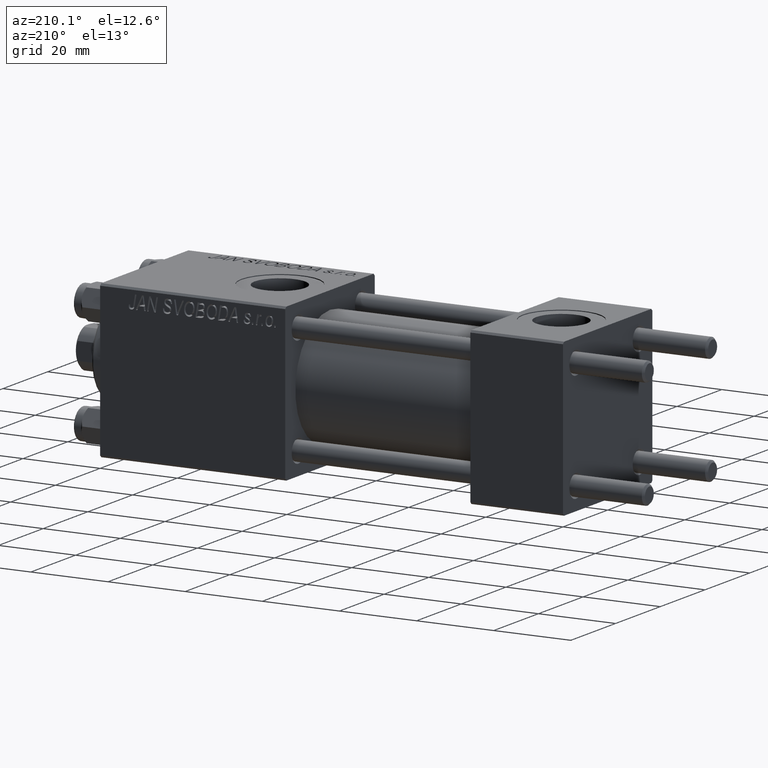
[diagram: clean part render]
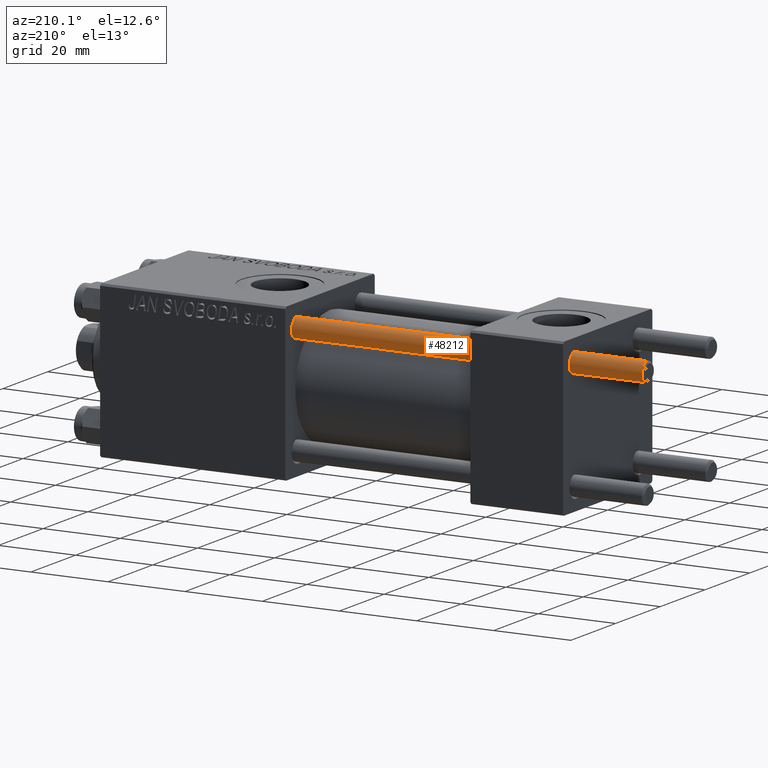
[diagram: same view with one face highlighted and labeled with its STEP entity id]
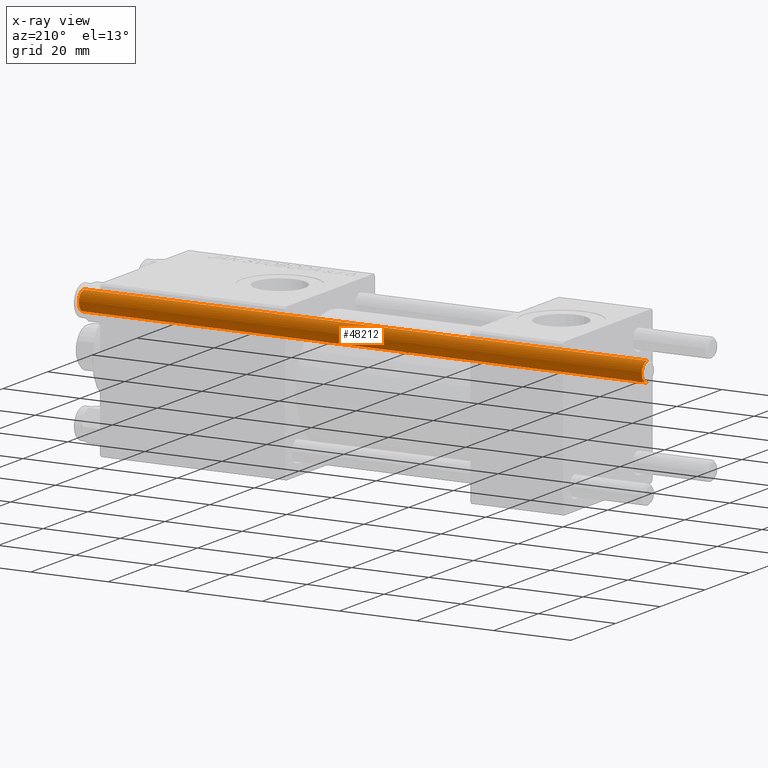
[diagram: x-ray of the same camera — body ghosted, the highlighted face saturated]
A machine part, auxiliary view. The second image highlights one B-rep face of the part: STEP entity #48212.
The next image is the same camera in x-ray: the body ghosted, the highlighted face saturated — about 0% of this face is hidden behind the body in this view.
In plain terms, the highlighted cylindrical surface (edge-blend (fillet) strip) has radius 2.5 mm, axis along (-1, -0, -0).
Its self-contained STEP definition (entity closure, byte-faithful):
#9 = VERTEX_POINT ( 'NONE', #35545 ) ;
#1189 = CARTESIAN_POINT ( 'NONE',  ( 2.500000000000000000, 3.061616997868383141E-16, 0.5000000000000004441 ) ) ;
#5062 = VERTEX_POINT ( 'NONE', #1189 ) ;
#5803 = FACE_OUTER_BOUND ( 'NONE', #13515, .T. ) ;
#6046 = CYLINDRICAL_SURFACE ( 'NONE', #13373, 2.500000000000000000 ) ;
#7053 = CARTESIAN_POINT ( 'NONE',  ( -2.500000000000000000, 0.000000000000000000, 147.0000000000000000 ) ) ;
#8470 = DIRECTION ( 'NONE',  ( -0.000000000000000000, -0.000000000000000000, -1.000000000000000000 ) ) ;
#10482 = VECTOR ( 'NONE', #24926, 1000.000000000000000 ) ;
#12006 = DIRECTION ( 'NONE',  ( -1.000000000000000000, 0.000000000000000000, 0.000000000000000000 ) ) ;
#12880 = CIRCLE ( 'NONE', #26645, 2.500000000000000000 ) ;
#13373 = AXIS2_PLACEMENT_3D ( 'NONE', #21433, #8470, #12006 ) ;
#13515 = EDGE_LOOP ( 'NONE', ( #44448, #49059, #49265, #27743 ) ) ;
#14994 = EDGE_CURVE ( 'NONE', #5062, #18139, #35416, .T. ) ;
#15629 = CARTESIAN_POINT ( 'NONE',  ( -2.500000000000000000, 0.000000000000000000, 146.5000000000000284 ) ) ;
#15687 = EDGE_CURVE ( 'NONE', #9, #5062, #36784, .T. ) ;
#18139 = VERTEX_POINT ( 'NONE', #29608 ) ;
#18306 = DIRECTION ( 'NONE',  ( 0.000000000000000000, 0.000000000000000000, -1.000000000000000000 ) ) ;
#19311 = AXIS2_PLACEMENT_3D ( 'NONE', #25599, #45058, #30152 ) ;
#21433 = CARTESIAN_POINT ( 'NONE',  ( 0.000000000000000000, 0.000000000000000000, 147.0000000000000000 ) ) ;
#22110 = CARTESIAN_POINT ( 'NONE',  ( 0.000000000000000000, 0.000000000000000000, 146.5000000000000284 ) ) ;
#24926 = DIRECTION ( 'NONE',  ( -0.000000000000000000, -0.000000000000000000, -1.000000000000000000 ) ) ;
#25033 = EDGE_CURVE ( 'NONE', #28433, #9, #12880, .T. ) ;
#25599 = CARTESIAN_POINT ( 'NONE',  ( 0.000000000000000000, 0.000000000000000000, 0.5000000000000004441 ) ) ;
#26645 = AXIS2_PLACEMENT_3D ( 'NONE', #22110, #18306, #49902 ) ;
#27743 = ORIENTED_EDGE ( 'NONE', *, *, #45528, .F. ) ;
#28433 = VERTEX_POINT ( 'NONE', #15629 ) ;
#29608 = CARTESIAN_POINT ( 'NONE',  ( -2.500000000000000000, 0.000000000000000000, 0.5000000000000004441 ) ) ;
#29774 = DIRECTION ( 'NONE',  ( -0.000000000000000000, -0.000000000000000000, -1.000000000000000000 ) ) ;
#30152 = DIRECTION ( 'NONE',  ( 1.000000000000000000, 0.000000000000000000, 0.000000000000000000 ) ) ;
#32501 = CARTESIAN_POINT ( 'NONE',  ( 2.500000000000000000, 3.061616997868383141E-16, 147.0000000000000000 ) ) ;
#35416 = CIRCLE ( 'NONE', #19311, 2.500000000000000000 ) ;
#35545 = CARTESIAN_POINT ( 'NONE',  ( 2.500000000000000000, 3.061616997868383141E-16, 146.5000000000000284 ) ) ;
#36784 = LINE ( 'NONE', #32501, #10482 ) ;
#40754 = VECTOR ( 'NONE', #29774, 1000.000000000000000 ) ;
#44433 = LINE ( 'NONE', #7053, #40754 ) ;
#44448 = ORIENTED_EDGE ( 'NONE', *, *, #25033, .T. ) ;
#45058 = DIRECTION ( 'NONE',  ( -0.000000000000000000, -0.000000000000000000, 1.000000000000000000 ) ) ;
#45528 = EDGE_CURVE ( 'NONE', #28433, #18139, #44433, .T. ) ;
#48212 = ADVANCED_FACE ( 'NONE', ( #5803 ), #6046, .T. ) ;
#49059 = ORIENTED_EDGE ( 'NONE', *, *, #15687, .T. ) ;
#49265 = ORIENTED_EDGE ( 'NONE', *, *, #14994, .T. ) ;
#49902 = DIRECTION ( 'NONE',  ( 1.000000000000000000, 0.000000000000000000, 0.000000000000000000 ) ) ;